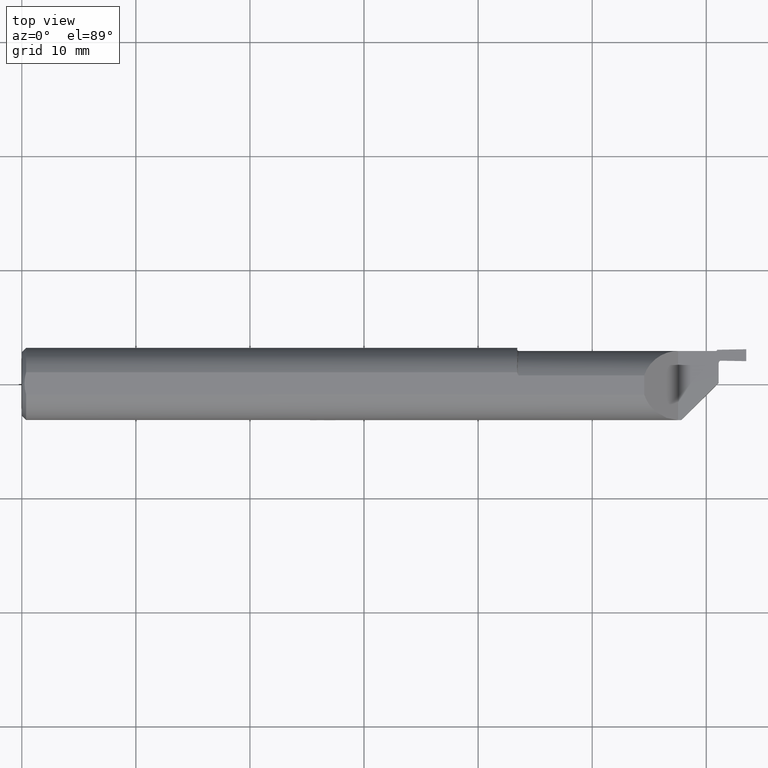
[diagram: clean part render]
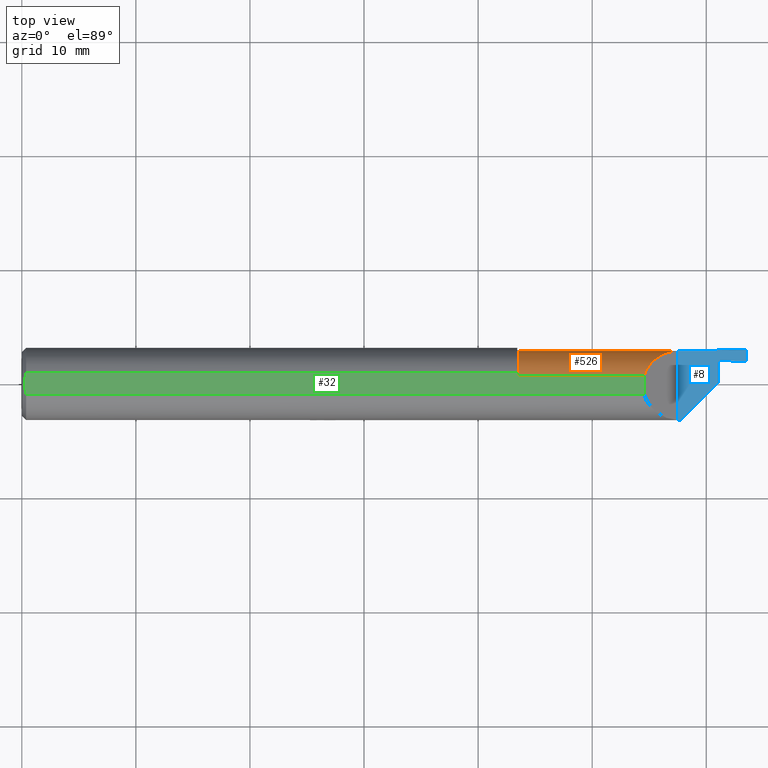
[diagram: same view with three faces highlighted in distinct colors, each labeled with its STEP entity id]
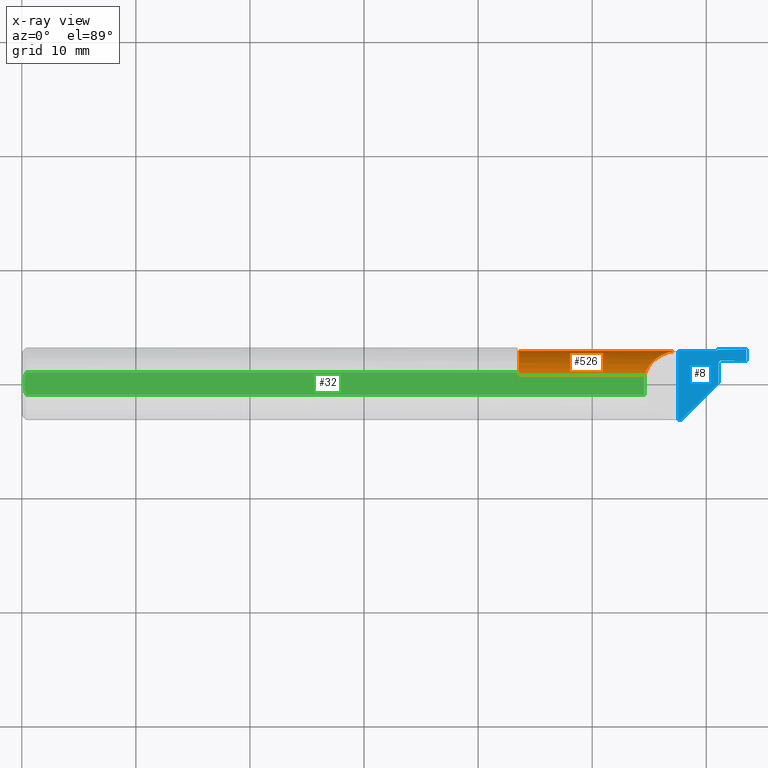
[diagram: x-ray of the same camera — body ghosted, the three highlighted faces saturated]
A machine part, top view with three faces highlighted in distinct colors.
The next image is the same camera in x-ray (body ghosted, the three faces saturated) — at least one of them is partly hidden behind the body in this view.
Their STEP definitions:

[orange] entity #526 — the highlighted cylindrical surface (edge-blend (fillet) strip) has radius 3.175 mm, axis along (1, 0, -0).
#15 = DIRECTION ( 'NONE',  ( 1.000000000000000000, 1.113524997417498594E-16, -0.000000000000000000 ) ) ;
#28 = EDGE_CURVE ( 'NONE', #834, #234, #546, .T. ) ;
#35 = VERTEX_POINT ( 'NONE', #448 ) ;
#40 = CARTESIAN_POINT ( 'NONE',  ( 2.148000000000000131, 0.02757490814094780071, 0.1188499999999999973 ) ) ;
#44 = DIRECTION ( 'NONE',  ( 0.000000000000000000, 1.000000000000000000, 0.000000000000000000 ) ) ;
#51 = DIRECTION ( 'NONE',  ( 0.000000000000000000, 1.000000000000000000, 0.000000000000000000 ) ) ;
#112 = CARTESIAN_POINT ( 'NONE',  ( 1.715000000000000080, -0.01115076164021948195, 0.000000000000000000 ) ) ;
#126 = CARTESIAN_POINT ( 'NONE',  ( 2.148000000000000131, 0.02757490814094780071, 0.1188499999999999973 ) ) ;
#140 = VECTOR ( 'NONE', #15, 39.37007874015748143 ) ;
#150 = AXIS2_PLACEMENT_3D ( 'NONE', #865, #804, #51 ) ;
#173 = LINE ( 'NONE', #378, #839 ) ;
#206 = DIRECTION ( 'NONE',  ( -1.000000000000000000, -0.000000000000000000, 0.000000000000000000 ) ) ;
#234 = VERTEX_POINT ( 'NONE', #253 ) ;
#236 = CARTESIAN_POINT ( 'NONE',  ( 1.715000000000000080, 0.02757490814094750234, 0.1188500000000000389 ) ) ;
#241 = VERTEX_POINT ( 'NONE', #739 ) ;
#253 = CARTESIAN_POINT ( 'NONE',  ( 2.265000000000000124, 0.1138355476100341018, 0.001850000000000401670 ) ) ;
#260 = FACE_OUTER_BOUND ( 'NONE', #384, .T. ) ;
#297 = AXIS2_PLACEMENT_3D ( 'NONE', #563, #206, #821 ) ;
#311 = LINE ( 'NONE', #318, #140 ) ;
#318 = CARTESIAN_POINT ( 'NONE',  ( 2.399999999999999911, 0.1138492383597806412, 0.000000000000000000 ) ) ;
#321 = CARTESIAN_POINT ( 'NONE',  ( 2.165141516003344258, 0.08018262773649612041, 0.1017084839966559406 ) ) ;
#368 = ORIENTED_EDGE ( 'NONE', *, *, #703, .F. ) ;
#371 = AXIS2_PLACEMENT_3D ( 'NONE', #112, #390, #44 ) ;
#378 = CARTESIAN_POINT ( 'NONE',  ( 2.399999999999999911, 0.02757490814094788745, 0.1188499999999999973 ) ) ;
#384 = EDGE_LOOP ( 'NONE', ( #630, #800, #368, #506, #640 ) ) ;
#390 = DIRECTION ( 'NONE',  ( 1.000000000000000000, 1.113524997417498594E-16, -0.000000000000000000 ) ) ;
#432 = VERTEX_POINT ( 'NONE', #236 ) ;
#448 = CARTESIAN_POINT ( 'NONE',  ( 2.265000000000000124, 0.1138492383597806273, 0.000000000000000000 ) ) ;
#494 = EDGE_CURVE ( 'NONE', #241, #35, #311, .T. ) ;
#506 = ORIENTED_EDGE ( 'NONE', *, *, #28, .T. ) ;
#526 = ADVANCED_FACE ( 'NONE', ( #260 ), #539, .T. ) ;
#539 = CYLINDRICAL_SURFACE ( 'NONE', #150, 0.1250000000000000555 ) ;
#546 =( BOUNDED_CURVE ( )  B_SPLINE_CURVE ( 3, ( #40, #321, #780, #581 ),
 .UNSPECIFIED., .F., .T. ) 
 B_SPLINE_CURVE_WITH_KNOTS ( ( 4, 4 ),
 ( 3.456580965538229577, 4.697588440032756552 ),
 .UNSPECIFIED. ) 
 CURVE ( )  GEOMETRIC_REPRESENTATION_ITEM ( )  RATIONAL_B_SPLINE_CURVE ( ( 1.000000000000000000, 0.8757237762408390802, 0.8757237762408390802, 1.000000000000000000 ) ) 
 REPRESENTATION_ITEM ( '' )  );
#563 = CARTESIAN_POINT ( 'NONE',  ( 2.265000000000000124, -0.01115076164021942123, 0.000000000000000000 ) ) ;
#581 = CARTESIAN_POINT ( 'NONE',  ( 2.265000000000000124, 0.1138355476100341018, 0.001850000000000401670 ) ) ;
#603 = EDGE_CURVE ( 'NONE', #241, #432, #719, .T. ) ;
#630 = ORIENTED_EDGE ( 'NONE', *, *, #494, .F. ) ;
#640 = ORIENTED_EDGE ( 'NONE', *, *, #829, .T. ) ;
#703 = EDGE_CURVE ( 'NONE', #834, #432, #173, .T. ) ;
#705 = CIRCLE ( 'NONE', #297, 0.1250000000000000555 ) ;
#719 = CIRCLE ( 'NONE', #371, 0.1250000000000000000 ) ;
#739 = CARTESIAN_POINT ( 'NONE',  ( 1.715000000000000080, 0.1138492383597805441, 0.000000000000000000 ) ) ;
#777 = DIRECTION ( 'NONE',  ( -1.000000000000000000, -1.113524997417498594E-16, 0.000000000000000000 ) ) ;
#780 = CARTESIAN_POINT ( 'NONE',  ( 2.209676106770552373, 0.1130166643012264355, 0.05717389322944788077 ) ) ;
#800 = ORIENTED_EDGE ( 'NONE', *, *, #603, .T. ) ;
#804 = DIRECTION ( 'NONE',  ( 1.000000000000000000, 1.113524997417498594E-16, -0.000000000000000000 ) ) ;
#821 = DIRECTION ( 'NONE',  ( 0.000000000000000000, 0.000000000000000000, -1.000000000000000000 ) ) ;
#829 = EDGE_CURVE ( 'NONE', #234, #35, #705, .T. ) ;
#834 = VERTEX_POINT ( 'NONE', #126 ) ;
#839 = VECTOR ( 'NONE', #777, 39.37007874015748143 ) ;
#865 = CARTESIAN_POINT ( 'NONE',  ( 2.399999999999999911, -0.01115076164021940562, 0.000000000000000000 ) ) ;

[blue] entity #8 — the highlighted planar face has unit normal (0, 0, -1).
#3 = EDGE_CURVE ( 'NONE', #412, #144, #181, .T. ) ;
#8 = ADVANCED_FACE ( 'NONE', ( #842 ), #176, .F. ) ;
#26 = CARTESIAN_POINT ( 'NONE',  ( 2.405000000000000249, 0.005149999999999994860, 0.000000000000000000 ) ) ;
#35 = VERTEX_POINT ( 'NONE', #448 ) ;
#49 = EDGE_CURVE ( 'NONE', #481, #412, #847, .T. ) ;
#69 = CARTESIAN_POINT ( 'NONE',  ( 2.607570889261497715, 0.1217268952162244983, 0.000000000000000000 ) ) ;
#70 = CARTESIAN_POINT ( 'NONE',  ( 2.413000000000000256, 0.07236661038418341907, 0.000000000000000000 ) ) ;
#77 = VECTOR ( 'NONE', #268, 39.37007874015748854 ) ;
#85 = CARTESIAN_POINT ( 'NONE',  ( 2.395000000000000018, 0.1188492383597805901, 0.000000000000000000 ) ) ;
#96 = VECTOR ( 'NONE', #370, 39.37007874015748143 ) ;
#99 = CARTESIAN_POINT ( 'NONE',  ( 2.399999999999999911, 0.1138492383597806412, 0.000000000000000000 ) ) ;
#100 = ORIENTED_EDGE ( 'NONE', *, *, #3, .F. ) ;
#136 = DIRECTION ( 'NONE',  ( 0.000000000000000000, -1.000000000000000000, 0.000000000000000000 ) ) ;
#144 = VERTEX_POINT ( 'NONE', #871 ) ;
#148 = CARTESIAN_POINT ( 'NONE',  ( 2.405000000000000249, 0.07236661038418341907, 0.000000000000000000 ) ) ;
#154 = ORIENTED_EDGE ( 'NONE', *, *, #657, .T. ) ;
#167 = CIRCLE ( 'NONE', #680, 0.004999999999999810152 ) ;
#176 = PLANE ( 'NONE',  #473 ) ;
#181 = LINE ( 'NONE', #656, #96 ) ;
#198 = DIRECTION ( 'NONE',  ( -1.000000000000000000, 0.000000000000000000, 0.000000000000000000 ) ) ;
#200 = LINE ( 'NONE', #148, #299 ) ;
#218 = EDGE_CURVE ( 'NONE', #643, #224, #606, .T. ) ;
#221 = LINE ( 'NONE', #69, #527 ) ;
#224 = VERTEX_POINT ( 'NONE', #474 ) ;
#249 = DIRECTION ( 'NONE',  ( -0.7071067811865489050, -0.7071067811865460184, 0.000000000000000000 ) ) ;
#254 = ORIENTED_EDGE ( 'NONE', *, *, #459, .T. ) ;
#268 = DIRECTION ( 'NONE',  ( -0.9998476951563912696, 0.01745240643727497681, -0.000000000000000000 ) ) ;
#275 = LINE ( 'NONE', #618, #487 ) ;
#289 = DIRECTION ( 'NONE',  ( 0.9998476951563914916, 0.01745240643726935284, 0.000000000000000000 ) ) ;
#299 = VECTOR ( 'NONE', #136, 39.37007874015748143 ) ;
#303 = EDGE_CURVE ( 'NONE', #310, #481, #200, .T. ) ;
#310 = VERTEX_POINT ( 'NONE', #570 ) ;
#334 = EDGE_CURVE ( 'NONE', #753, #788, #221, .T. ) ;
#357 = VECTOR ( 'NONE', #515, 39.37007874015748143 ) ;
#367 = LINE ( 'NONE', #99, #357 ) ;
#370 = DIRECTION ( 'NONE',  ( -1.000000000000000000, -0.000000000000000000, -0.000000000000000000 ) ) ;
#380 = CARTESIAN_POINT ( 'NONE',  ( 2.274999999999999467, -0.1248500000000000026, 0.000000000000000000 ) ) ;
#381 = DIRECTION ( 'NONE',  ( -1.000000000000000000, 0.000000000000000000, -0.000000000000000000 ) ) ;
#410 = CIRCLE ( 'NONE', #608, 0.008000000000000024453 ) ;
#412 = VERTEX_POINT ( 'NONE', #380 ) ;
#428 = VECTOR ( 'NONE', #249, 39.37007874015748854 ) ;
#448 = CARTESIAN_POINT ( 'NONE',  ( 2.265000000000000124, 0.1138492383597806273, 0.000000000000000000 ) ) ;
#459 = EDGE_CURVE ( 'NONE', #753, #849, #167, .T. ) ;
#464 = ORIENTED_EDGE ( 'NONE', *, *, #858, .F. ) ;
#472 = VECTOR ( 'NONE', #843, 39.37007874015748143 ) ;
#473 = AXIS2_PLACEMENT_3D ( 'NONE', #666, #724, #381 ) ;
#474 = CARTESIAN_POINT ( 'NONE',  ( 2.413139705841341964, 0.08036539043400320326, 3.201384367575308459E-18 ) ) ;
#481 = VERTEX_POINT ( 'NONE', #26 ) ;
#487 = VECTOR ( 'NONE', #749, 39.37007874015748143 ) ;
#512 = DIRECTION ( 'NONE',  ( 0.000000000000000000, 0.000000000000000000, -1.000000000000000000 ) ) ;
#515 = DIRECTION ( 'NONE',  ( -1.000000000000000000, -1.113524997417498594E-16, 0.000000000000000000 ) ) ;
#527 = VECTOR ( 'NONE', #289, 39.37007874015748143 ) ;
#528 = CARTESIAN_POINT ( 'NONE',  ( 2.500000000000000000, 0.07884923835978048523, 0.000000000000000000 ) ) ;
#557 = CARTESIAN_POINT ( 'NONE',  ( 2.395000000000000018, 0.1138492383597806967, 0.000000000000000000 ) ) ;
#565 = ORIENTED_EDGE ( 'NONE', *, *, #334, .F. ) ;
#570 = CARTESIAN_POINT ( 'NONE',  ( 2.405000000000000249, 0.07236661038418341907, 0.000000000000000000 ) ) ;
#606 = LINE ( 'NONE', #881, #77 ) ;
#608 = AXIS2_PLACEMENT_3D ( 'NONE', #70, #813, #198 ) ;
#618 = CARTESIAN_POINT ( 'NONE',  ( 2.265000000000000124, -0.2248499999999999943, 0.000000000000000000 ) ) ;
#643 = VERTEX_POINT ( 'NONE', #528 ) ;
#656 = CARTESIAN_POINT ( 'NONE',  ( 0.000000000000000000, -0.1248500000000000026, 0.000000000000000000 ) ) ;
#657 = EDGE_CURVE ( 'NONE', #849, #35, #367, .T. ) ;
#666 = CARTESIAN_POINT ( 'NONE',  ( 2.265000000000000124, -0.2248499999999999943, 0.000000000000000000 ) ) ;
#680 = AXIS2_PLACEMENT_3D ( 'NONE', #85, #512, #779 ) ;
#686 = CARTESIAN_POINT ( 'NONE',  ( 2.399943962043126433, 0.1181027537208727968, 4.999737899763286454E-13 ) ) ;
#687 = ORIENTED_EDGE ( 'NONE', *, *, #49, .F. ) ;
#712 = ORIENTED_EDGE ( 'NONE', *, *, #218, .F. ) ;
#724 = DIRECTION ( 'NONE',  ( 0.000000000000000000, 0.000000000000000000, -1.000000000000000000 ) ) ;
#726 = ORIENTED_EDGE ( 'NONE', *, *, #303, .F. ) ;
#743 = EDGE_CURVE ( 'NONE', #643, #788, #852, .T. ) ;
#749 = DIRECTION ( 'NONE',  ( 0.000000000000000000, 1.000000000000000000, 0.000000000000000000 ) ) ;
#753 = VERTEX_POINT ( 'NONE', #686 ) ;
#778 = ORIENTED_EDGE ( 'NONE', *, *, #814, .F. ) ;
#779 = DIRECTION ( 'NONE',  ( -1.000000000000000000, 0.000000000000000000, 0.000000000000000000 ) ) ;
#788 = VERTEX_POINT ( 'NONE', #887 ) ;
#794 = CARTESIAN_POINT ( 'NONE',  ( 2.405000000000000249, 0.005149999999999994860, 0.000000000000000000 ) ) ;
#813 = DIRECTION ( 'NONE',  ( 0.000000000000000000, 0.000000000000000000, 1.000000000000000000 ) ) ;
#814 = EDGE_CURVE ( 'NONE', #144, #35, #275, .T. ) ;
#830 = EDGE_LOOP ( 'NONE', ( #565, #254, #154, #778, #100, #687, #726, #464, #712, #877 ) ) ;
#842 = FACE_OUTER_BOUND ( 'NONE', #830, .T. ) ;
#843 = DIRECTION ( 'NONE',  ( 0.000000000000000000, 1.000000000000000000, 0.000000000000000000 ) ) ;
#847 = LINE ( 'NONE', #794, #428 ) ;
#849 = VERTEX_POINT ( 'NONE', #557 ) ;
#852 = LINE ( 'NONE', #863, #472 ) ;
#858 = EDGE_CURVE ( 'NONE', #224, #310, #410, .T. ) ;
#863 = CARTESIAN_POINT ( 'NONE',  ( 2.500000000000000000, -0.2248499999999999943, 0.000000000000000000 ) ) ;
#871 = CARTESIAN_POINT ( 'NONE',  ( 2.265000000000000124, -0.1248500000000000026, 0.000000000000000000 ) ) ;
#877 = ORIENTED_EDGE ( 'NONE', *, *, #743, .T. ) ;
#881 = CARTESIAN_POINT ( 'NONE',  ( 2.413139619251498225, 0.08036539194543454445, 0.000000000000000000 ) ) ;
#887 = CARTESIAN_POINT ( 'NONE',  ( 2.500000000000000000, 0.1198492383597806049, 6.722907171908147379E-16 ) ) ;

[green] entity #32 — the highlighted planar face has unit normal (0, 0, -1).
#1 = CARTESIAN_POINT ( 'NONE',  ( 0.01158016045613162459, -0.02568400999800457205, 0.1188499999999999973 ) ) ;
#6 = VECTOR ( 'NONE', #615, 39.37007874015748143 ) ;
#30 = VERTEX_POINT ( 'NONE', #104 ) ;
#32 = ADVANCED_FACE ( 'NONE', ( #436 ), #720, .F. ) ;
#43 = ORIENTED_EDGE ( 'NONE', *, *, #101, .F. ) ;
#45 = LINE ( 'NONE', #851, #706 ) ;
#79 = B_SPLINE_CURVE_WITH_KNOTS ( 'NONE', 3,
 ( #496, #407, #628, #1, #344, #817 ),
 .UNSPECIFIED., .F., .F.,
 ( 4, 2, 4 ),
 ( 0.003915279494386507235, 0.004402528257931054290, 0.004889777021475600477 ),
 .UNSPECIFIED. ) ;
#94 = VECTOR ( 'NONE', #553, 39.37007874015748143 ) ;
#101 = EDGE_CURVE ( 'NONE', #659, #595, #45, .T. ) ;
#104 = CARTESIAN_POINT ( 'NONE',  ( 2.148000000000000131, -0.03823872382807772669, 0.1188499999999999973 ) ) ;
#105 = CARTESIAN_POINT ( 'NONE',  ( 0.01500000000000023190, 0.03823872382807772669, 0.1188499999999999973 ) ) ;
#126 = CARTESIAN_POINT ( 'NONE',  ( 2.148000000000000131, 0.02757490814094780071, 0.1188499999999999973 ) ) ;
#130 = LINE ( 'NONE', #270, #94 ) ;
#133 = EDGE_CURVE ( 'NONE', #30, #151, #684, .T. ) ;
#151 = VERTEX_POINT ( 'NONE', #812 ) ;
#173 = LINE ( 'NONE', #378, #839 ) ;
#188 = CARTESIAN_POINT ( 'NONE',  ( 0.01500000000000023190, 0.03823872382807772669, 0.1188499999999999973 ) ) ;
#219 = ORIENTED_EDGE ( 'NONE', *, *, #762, .T. ) ;
#233 = CARTESIAN_POINT ( 'NONE',  ( 1.710754412305492300, 0.03420765519299448498, 0.1188500000000000389 ) ) ;
#236 = CARTESIAN_POINT ( 'NONE',  ( 1.715000000000000080, 0.02757490814094750234, 0.1188500000000000389 ) ) ;
#240 = CARTESIAN_POINT ( 'NONE',  ( 1.714473844127619051, 0.02757490814094750581, 0.1188500000000000389 ) ) ;
#250 = CARTESIAN_POINT ( 'NONE',  ( 1.710379839581037453, 0.03621100365931469167, 0.1188499999999999973 ) ) ;
#255 = CARTESIAN_POINT ( 'NONE',  ( 0.009546064770316114653, 0.01302659621470520467, 0.1188499999999999696 ) ) ;
#270 = CARTESIAN_POINT ( 'NONE',  ( 2.148000000000000131, 0.03823872382807772669, 0.1188499999999999973 ) ) ;
#328 = CARTESIAN_POINT ( 'NONE',  ( 1.710170960735225121, 0.03823872382821605354, 0.1188499999999555051 ) ) ;
#344 = CARTESIAN_POINT ( 'NONE',  ( 0.01310613948468477771, -0.03205524117839877313, 0.1188499999999999973 ) ) ;
#378 = CARTESIAN_POINT ( 'NONE',  ( 2.399999999999999911, 0.02757490814094788745, 0.1188499999999999973 ) ) ;
#383 = CARTESIAN_POINT ( 'NONE',  ( 1.712918520445145143, 0.02898633677933139252, 0.1188500000000000389 ) ) ;
#393 = ORIENTED_EDGE ( 'NONE', *, *, #133, .F. ) ;
#397 = CARTESIAN_POINT ( 'NONE',  ( 0.008999999999999641967, 4.252717492586794387E-17, 0.1188499999999999973 ) ) ;
#403 = CARTESIAN_POINT ( 'NONE',  ( 0.000000000000000000, -0.03823872382807772669, 0.1188499999999999973 ) ) ;
#407 = CARTESIAN_POINT ( 'NONE',  ( 0.009000000000000016667, -0.006484286479682693435, 0.1188499999999999973 ) ) ;
#432 = VERTEX_POINT ( 'NONE', #236 ) ;
#436 = FACE_OUTER_BOUND ( 'NONE', #888, .T. ) ;
#462 = CARTESIAN_POINT ( 'NONE',  ( 0.01160054105591650300, 0.02577801096047404456, 0.1188500000000000112 ) ) ;
#471 = CARTESIAN_POINT ( 'NONE',  ( 1.715000000000000080, 0.02757490814094750234, 0.1188500000000000389 ) ) ;
#496 = CARTESIAN_POINT ( 'NONE',  ( 0.008999999999999641967, 4.252717492586794387E-17, 0.1188499999999999973 ) ) ;
#509 = VERTEX_POINT ( 'NONE', #397 ) ;
#529 = AXIS2_PLACEMENT_3D ( 'NONE', #587, #597, #862 ) ;
#536 = CARTESIAN_POINT ( 'NONE',  ( 1.710170960735225121, 0.03823872382821605354, 0.1188499999999555051 ) ) ;
#553 = DIRECTION ( 'NONE',  ( -0.000000000000000000, 1.000000000000000000, 0.000000000000000000 ) ) ;
#572 = ORIENTED_EDGE ( 'NONE', *, *, #703, .T. ) ;
#573 = EDGE_CURVE ( 'NONE', #659, #509, #701, .T. ) ;
#587 = CARTESIAN_POINT ( 'NONE',  ( 0.000000000000000000, -0.2248499999999999943, 0.1188499999999999973 ) ) ;
#595 = VERTEX_POINT ( 'NONE', #328 ) ;
#597 = DIRECTION ( 'NONE',  ( 0.000000000000000000, 0.000000000000000000, -1.000000000000000000 ) ) ;
#611 = CARTESIAN_POINT ( 'NONE',  ( 0.008999999999999641967, 4.252717492586794387E-17, 0.1188499999999999973 ) ) ;
#615 = DIRECTION ( 'NONE',  ( -1.000000000000000000, -0.000000000000000000, -0.000000000000000000 ) ) ;
#617 = EDGE_CURVE ( 'NONE', #432, #595, #696, .T. ) ;
#628 = CARTESIAN_POINT ( 'NONE',  ( 0.009533601434317374654, -0.01291622207163062135, 0.1188500000000000112 ) ) ;
#659 = VERTEX_POINT ( 'NONE', #105 ) ;
#662 = DIRECTION ( 'NONE',  ( 1.000000000000000000, 0.000000000000000000, 0.000000000000000000 ) ) ;
#663 = CARTESIAN_POINT ( 'NONE',  ( 1.712115487717478235, 0.03030911079244093254, 0.1188500000000000112 ) ) ;
#664 = ORIENTED_EDGE ( 'NONE', *, *, #617, .T. ) ;
#671 = CARTESIAN_POINT ( 'NONE',  ( 0.009000000000000025341, 0.006491061014450950212, 0.1188499999999999973 ) ) ;
#684 = LINE ( 'NONE', #403, #6 ) ;
#696 = B_SPLINE_CURVE_WITH_KNOTS ( 'NONE', 3,
 ( #471, #240, #848, #725, #383, #663, #744, #233, #250, #536 ),
 .UNSPECIFIED., .F., .F.,
 ( 4, 2, 2, 2, 4 ),
 ( 1.511091346206740641E-05, 5.470638640598247514E-05, 9.430185934989754727E-05, 0.0001734928052377165378, 0.0003318746970133544917 ),
 .UNSPECIFIED. ) ;
#701 = B_SPLINE_CURVE_WITH_KNOTS ( 'NONE', 3,
 ( #188, #797, #462, #255, #671, #611 ),
 .UNSPECIFIED., .F., .F.,
 ( 4, 2, 4 ),
 ( 0.002939763849513850943, 0.003427521671950178872, 0.003915279494386507235 ),
 .UNSPECIFIED. ) ;
#703 = EDGE_CURVE ( 'NONE', #834, #432, #173, .T. ) ;
#706 = VECTOR ( 'NONE', #662, 39.37007874015748143 ) ;
#720 = PLANE ( 'NONE',  #529 ) ;
#725 = CARTESIAN_POINT ( 'NONE',  ( 1.713227278469431791, 0.02855906026573750908, 0.1188499999999999696 ) ) ;
#744 = CARTESIAN_POINT ( 'NONE',  ( 1.711730602344048169, 0.03126357590803275494, 0.1188499999999999696 ) ) ;
#762 = EDGE_CURVE ( 'NONE', #509, #151, #79, .T. ) ;
#777 = DIRECTION ( 'NONE',  ( -1.000000000000000000, -1.113524997417498594E-16, 0.000000000000000000 ) ) ;
#797 = CARTESIAN_POINT ( 'NONE',  ( 0.01310472768618554072, 0.03205063163538453969, 0.1188499999999999696 ) ) ;
#812 = CARTESIAN_POINT ( 'NONE',  ( 0.01499999999997804305, -0.03823872382811423221, 0.1188499999999999973 ) ) ;
#817 = CARTESIAN_POINT ( 'NONE',  ( 0.01499999999997804305, -0.03823872382811423221, 0.1188499999999999973 ) ) ;
#818 = ORIENTED_EDGE ( 'NONE', *, *, #573, .T. ) ;
#834 = VERTEX_POINT ( 'NONE', #126 ) ;
#837 = ORIENTED_EDGE ( 'NONE', *, *, #857, .T. ) ;
#839 = VECTOR ( 'NONE', #777, 39.37007874015748143 ) ;
#848 = CARTESIAN_POINT ( 'NONE',  ( 1.713990696821216630, 0.02785570178468176755, 0.1188500000000000112 ) ) ;
#851 = CARTESIAN_POINT ( 'NONE',  ( 0.000000000000000000, 0.03823872382807772669, 0.1188499999999999973 ) ) ;
#857 = EDGE_CURVE ( 'NONE', #30, #834, #130, .T. ) ;
#862 = DIRECTION ( 'NONE',  ( -1.000000000000000000, 0.000000000000000000, -0.000000000000000000 ) ) ;
#888 = EDGE_LOOP ( 'NONE', ( #837, #572, #664, #43, #818, #219, #393 ) ) ;